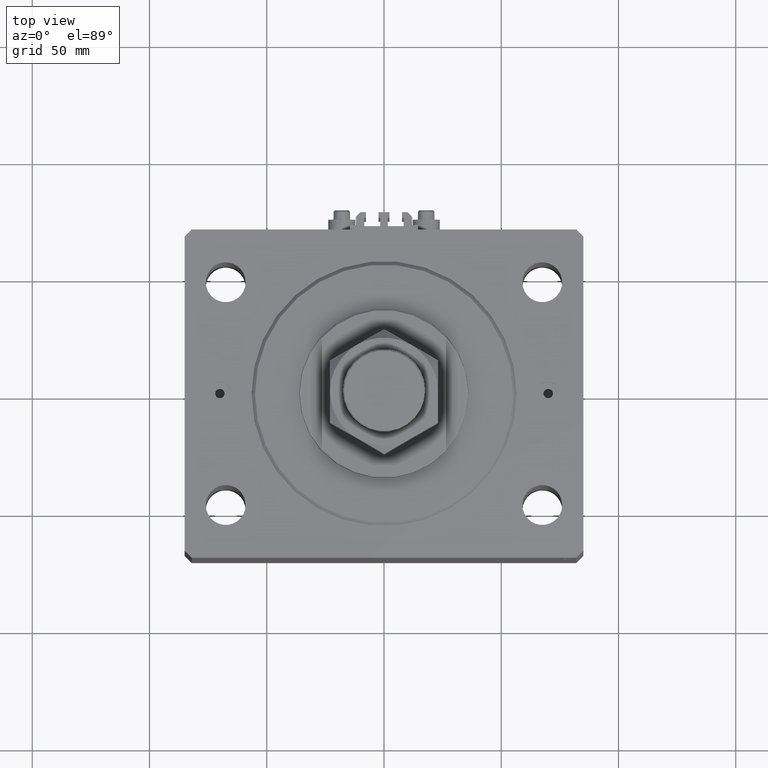
[diagram: clean part render]
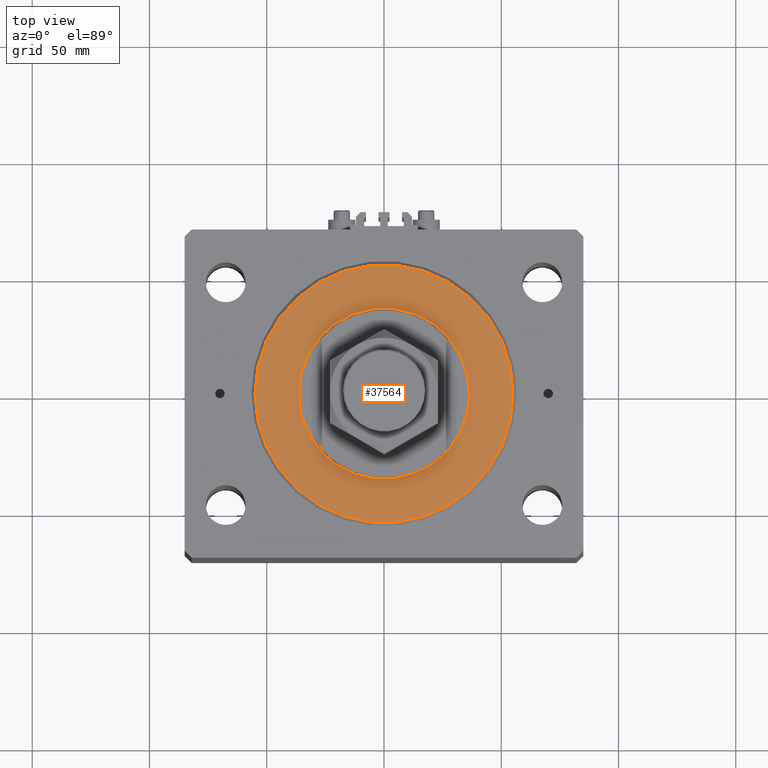
[diagram: same view with one face highlighted and labeled with its STEP entity id]
A machine part, top view. The second image highlights one B-rep face of the part: STEP entity #37564.
In plain terms, the highlighted planar face has unit normal (0, 0, -1).
Its self-contained STEP definition (entity closure, byte-faithful):
#4 = DIRECTION ( 'NONE',  ( 1.000000000000000000, 0.000000000000000000, 0.000000000000000000 ) ) ;
#476 = FACE_BOUND ( 'NONE', #18731, .T. ) ;
#2388 = CARTESIAN_POINT ( 'NONE',  ( -36.50000000000000000, 4.469960816887838430E-15, -2.168404344971008868E-16 ) ) ;
#2798 = AXIS2_PLACEMENT_3D ( 'NONE', #14402, #29493, #4 ) ;
#3789 = VERTEX_POINT ( 'NONE', #5773 ) ;
#4906 = EDGE_CURVE ( 'NONE', #26241, #10553, #45286, .T. ) ;
#4939 = DIRECTION ( 'NONE',  ( 1.000000000000000000, 0.000000000000000000, 0.000000000000000000 ) ) ;
#5773 = CARTESIAN_POINT ( 'NONE',  ( -55.00000000000002132, 6.827405905246494765E-15, 0.000000000000000000 ) ) ;
#10553 = VERTEX_POINT ( 'NONE', #26925 ) ;
#10925 = DIRECTION ( 'NONE',  ( 0.000000000000000000, 0.000000000000000000, 1.000000000000000000 ) ) ;
#11410 = FACE_OUTER_BOUND ( 'NONE', #34701, .T. ) ;
#14402 = CARTESIAN_POINT ( 'NONE',  ( 0.000000000000000000, 0.000000000000000000, 0.000000000000000000 ) ) ;
#15154 = VERTEX_POINT ( 'NONE', #43625 ) ;
#15843 = ORIENTED_EDGE ( 'NONE', *, *, #42209, .T. ) ;
#16338 = DIRECTION ( 'NONE',  ( -0.000000000000000000, -0.000000000000000000, -1.000000000000000000 ) ) ;
#16585 = CARTESIAN_POINT ( 'NONE',  ( 0.000000000000000000, 0.000000000000000000, 0.000000000000000000 ) ) ;
#18731 = EDGE_LOOP ( 'NONE', ( #15843, #26648 ) ) ;
#21637 = CARTESIAN_POINT ( 'NONE',  ( 0.000000000000000000, 0.000000000000000000, 0.000000000000000000 ) ) ;
#22806 = DIRECTION ( 'NONE',  ( 1.000000000000000000, 0.000000000000000000, -0.000000000000000000 ) ) ;
#23045 = CARTESIAN_POINT ( 'NONE',  ( 0.000000000000000000, 0.000000000000000000, 0.000000000000000000 ) ) ;
#23150 = DIRECTION ( 'NONE',  ( 1.000000000000000000, 0.000000000000000000, 0.000000000000000000 ) ) ;
#23166 = AXIS2_PLACEMENT_3D ( 'NONE', #21637, #25587, #32776 ) ;
#24006 = ORIENTED_EDGE ( 'NONE', *, *, #35781, .T. ) ;
#25587 = DIRECTION ( 'NONE',  ( 0.000000000000000000, 0.000000000000000000, 1.000000000000000000 ) ) ;
#26241 = VERTEX_POINT ( 'NONE', #2388 ) ;
#26648 = ORIENTED_EDGE ( 'NONE', *, *, #4906, .T. ) ;
#26925 = CARTESIAN_POINT ( 'NONE',  ( 36.50000000000000000, 0.000000000000000000, -2.168404344971008868E-16 ) ) ;
#29493 = DIRECTION ( 'NONE',  ( 0.000000000000000000, 0.000000000000000000, 1.000000000000000000 ) ) ;
#30576 = DIRECTION ( 'NONE',  ( -0.000000000000000000, -0.000000000000000000, -1.000000000000000000 ) ) ;
#31143 = AXIS2_PLACEMENT_3D ( 'NONE', #16585, #16338, #4939 ) ;
#32776 = DIRECTION ( 'NONE',  ( 1.000000000000000000, 0.000000000000000000, 0.000000000000000000 ) ) ;
#33446 = CIRCLE ( 'NONE', #42915, 55.00000000000002132 ) ;
#33945 = PLANE ( 'NONE',  #43804 ) ;
#34298 = CIRCLE ( 'NONE', #31143, 55.00000000000002132 ) ;
#34701 = EDGE_LOOP ( 'NONE', ( #24006, #44722 ) ) ;
#35781 = EDGE_CURVE ( 'NONE', #15154, #3789, #33446, .T. ) ;
#37564 = ADVANCED_FACE ( 'NONE', ( #476, #11410 ), #33945, .F. ) ;
#37633 = EDGE_CURVE ( 'NONE', #3789, #15154, #34298, .T. ) ;
#40758 = CIRCLE ( 'NONE', #2798, 36.50000000000000000 ) ;
#41723 = CARTESIAN_POINT ( 'NONE',  ( 0.000000000000000000, 0.000000000000000000, 0.000000000000000000 ) ) ;
#42209 = EDGE_CURVE ( 'NONE', #10553, #26241, #40758, .T. ) ;
#42915 = AXIS2_PLACEMENT_3D ( 'NONE', #41723, #30576, #23150 ) ;
#43625 = CARTESIAN_POINT ( 'NONE',  ( 55.00000000000002132, 0.000000000000000000, 0.000000000000000000 ) ) ;
#43804 = AXIS2_PLACEMENT_3D ( 'NONE', #23045, #10925, #22806 ) ;
#44722 = ORIENTED_EDGE ( 'NONE', *, *, #37633, .T. ) ;
#45286 = CIRCLE ( 'NONE', #23166, 36.50000000000000000 ) ;